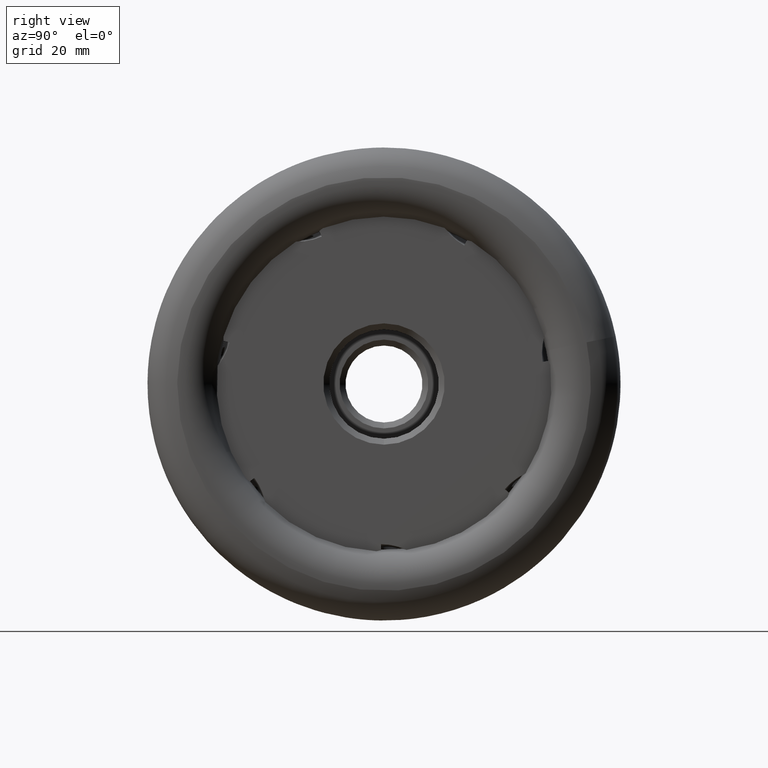
[diagram: clean part render]
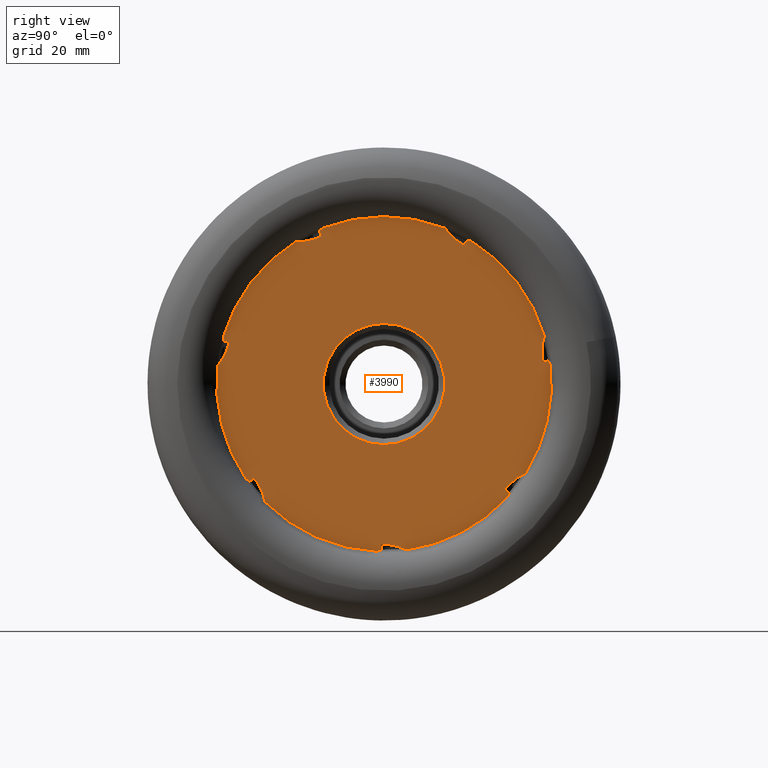
[diagram: same view with one face highlighted and labeled with its STEP entity id]
A machine part, right view. The second image highlights one B-rep face of the part: STEP entity #3990.
In plain terms, the highlighted planar face has unit normal (-1, 0, 0).
Its self-contained STEP definition (entity closure, byte-faithful):
#27 = VECTOR ( 'NONE', #6580, 1000.000000000000100 ) ;
#63 = DIRECTION ( 'NONE',  ( 1.000000000000000000, -0.0000000000000000000, -0.0000000000000000000 ) ) ;
#66 = CARTESIAN_POINT ( 'NONE',  ( -2.684159021143652800, 23.91552685691529900, -15.10342492799503200 ) ) ;
#81 = CARTESIAN_POINT ( 'NONE',  ( -2.684159021131010500, -10.54741568632687900, 24.91918016893186700 ) ) ;
#142 = ORIENTED_EDGE ( 'NONE', *, *, #4219, .T. ) ;
#213 = DIRECTION ( 'NONE',  ( -0.0000000000000000000, -0.7862165355837532600, 0.6179510977210743700 ) ) ;
#219 = CARTESIAN_POINT ( 'NONE',  ( -2.684159021131009600, 0.0000000000000000000, 0.0000000000000000000 ) ) ;
#301 = CARTESIAN_POINT ( 'NONE',  ( -2.684159021131009600, 3.802709604594073100, -28.02865086054721600 ) ) ;
#302 = ORIENTED_EDGE ( 'NONE', *, *, #5466, .F. ) ;
#348 = DIRECTION ( 'NONE',  ( 1.000000000000000000, -0.0000000000000000000, -0.0000000000000000000 ) ) ;
#373 = VERTEX_POINT ( 'NONE', #5206 ) ;
#391 = EDGE_CURVE ( 'NONE', #591, #3428, #402, .T. ) ;
#402 = LINE ( 'NONE', #3657, #4981 ) ;
#412 = CARTESIAN_POINT ( 'NONE',  ( -2.684159021131008700, -20.16977794833785300, -19.54301394921385100 ) ) ;
#447 = CARTESIAN_POINT ( 'NONE',  ( -2.684159021131009100, -0.1283178751443279100, -27.05482430088691700 ) ) ;
#478 = DIRECTION ( 'NONE',  ( 1.000000000000000000, -0.0000000000000000000, -0.0000000000000000000 ) ) ;
#480 = CARTESIAN_POINT ( 'NONE',  ( -2.684159021131009600, 5.192837229400479900, -10.43400671034540700 ) ) ;
#504 = EDGE_CURVE ( 'NONE', #6222, #931, #2110, .T. ) ;
#509 = CARTESIAN_POINT ( 'NONE',  ( -2.684159021131009600, -27.11552903484799200, 8.050711431915770400 ) ) ;
#533 = CARTESIAN_POINT ( 'NONE',  ( -2.684159021131009600, 29.36785909913680100, 0.3268310391987537800 ) ) ;
#547 = LINE ( 'NONE', #6301, #4722 ) ;
#561 = CARTESIAN_POINT ( 'NONE',  ( -2.684159021131009600, 28.10563964344210700, 3.184162312546134000 ) ) ;
#568 = AXIS2_PLACEMENT_3D ( 'NONE', #4446, #1475, #4965 ) ;
#573 = CARTESIAN_POINT ( 'NONE',  ( -2.684159021131010000, -11.23675674035416300, 24.63523487206301600 ) ) ;
#591 = VERTEX_POINT ( 'NONE', #6416 ) ;
#593 = VERTEX_POINT ( 'NONE', #1877 ) ;
#641 = CARTESIAN_POINT ( 'NONE',  ( -2.684159021131009600, 3.802709604594073100, -28.02865086054721600 ) ) ;
#644 = AXIS2_PLACEMENT_3D ( 'NONE', #3030, #63, #3549 ) ;
#657 = LINE ( 'NONE', #480, #27 ) ;
#659 = EDGE_CURVE ( 'NONE', #2014, #3850, #1658, .T. ) ;
#713 = EDGE_LOOP ( 'NONE', ( #1491, #5118, #5832, #5602, #142, #5439, #5041, #6142, #1563, #4626, #4944, #4950, #2447, #2862, #302, #3019, #2249, #6414, #1290, #1322, #4210, #2643, #6293, #2207, #1477, #3649, #3939, #2272 ) ) ;
#727 = DIRECTION ( 'NONE',  ( 0.0000000000000000000, 0.0000000000000000000, -1.000000000000000000 ) ) ;
#739 = DIRECTION ( 'NONE',  ( -0.0000000000000000000, -0.9666746126776137900, -0.2560081897217063000 ) ) ;
#741 = CARTESIAN_POINT ( 'NONE',  ( -2.684159021131009600, -10.34993942729597500, 26.32384134678994400 ) ) ;
#748 = EDGE_CURVE ( 'NONE', #897, #897, #3378, .T. ) ;
#787 = AXIS2_PLACEMENT_3D ( 'NONE', #2771, #6366, #3286 ) ;
#831 = EDGE_CURVE ( 'NONE', #5919, #6101, #657, .T. ) ;
#842 = FACE_BOUND ( 'NONE', #2644, .T. ) ;
#845 = CARTESIAN_POINT ( 'NONE',  ( -2.684159021131009600, 0.0000000000000000000, 0.0000000000000000000 ) ) ;
#862 = EDGE_CURVE ( 'NONE', #5205, #3491, #1307, .T. ) ;
#887 = EDGE_CURVE ( 'NONE', #4970, #3503, #1450, .T. ) ;
#895 = CARTESIAN_POINT ( 'NONE',  ( -2.684159021131009600, -26.32779570456230900, 6.321656720578070900 ) ) ;
#897 = VERTEX_POINT ( 'NONE', #2430 ) ;
#918 = VERTEX_POINT ( 'NONE', #5281 ) ;
#931 = VERTEX_POINT ( 'NONE', #641 ) ;
#975 = VECTOR ( 'NONE', #2162, 1000.000000000000100 ) ;
#1002 = AXIS2_PLACEMENT_3D ( 'NONE', #4198, #1226, #4716 ) ;
#1040 = CARTESIAN_POINT ( 'NONE',  ( -2.684159021131008700, 12.31643690473492600, 24.22272606347239700 ) ) ;
#1072 = EDGE_CURVE ( 'NONE', #6101, #593, #6031, .T. ) ;
#1098 = CARTESIAN_POINT ( 'NONE',  ( -2.684159021131009600, -12.29807414084759800, 24.31983714480531900 ) ) ;
#1119 = CARTESIAN_POINT ( 'NONE',  ( -2.684159021131009600, -0.5000000000000004400, 0.0000000000000000000 ) ) ;
#1124 = PLANE ( 'NONE',  #1222 ) ;
#1141 = DIRECTION ( 'NONE',  ( 0.0000000000000000000, -0.4848096202463438900, -0.8746197071393919700 ) ) ;
#1168 = CARTESIAN_POINT ( 'NONE',  ( -2.684159021131009600, -26.98666154832039200, -0.8089395054585635200 ) ) ;
#1201 = VERTEX_POINT ( 'NONE', #4585 ) ;
#1222 = AXIS2_PLACEMENT_3D ( 'NONE', #1648, #2591, #6179 ) ;
#1226 = DIRECTION ( 'NONE',  ( 1.000000000000000000, -0.0000000000000000000, -0.0000000000000000000 ) ) ;
#1290 = ORIENTED_EDGE ( 'NONE', *, *, #887, .F. ) ;
#1307 = LINE ( 'NONE', #3633, #4190 ) ;
#1322 = ORIENTED_EDGE ( 'NONE', *, *, #5265, .T. ) ;
#1329 = EDGE_CURVE ( 'NONE', #918, #2551, #1990, .T. ) ;
#1350 = EDGE_CURVE ( 'NONE', #3851, #5300, #1916, .T. ) ;
#1370 = DIRECTION ( 'NONE',  ( 0.0000000000000000000, 0.0000000000000000000, -1.000000000000000000 ) ) ;
#1409 = CARTESIAN_POINT ( 'NONE',  ( -2.684159021131009600, 29.61009327628927000, -0.4614403324711946500 ) ) ;
#1410 = CARTESIAN_POINT ( 'NONE',  ( -2.684159021131010500, -26.13021944649869600, 7.030302243124623400 ) ) ;
#1412 = CARTESIAN_POINT ( 'NONE',  ( -2.684159021131009600, -21.90785091635478200, -15.88268195798917800 ) ) ;
#1450 = LINE ( 'NONE', #1168, #975 ) ;
#1475 = DIRECTION ( 'NONE',  ( 1.000000000000000000, -0.0000000000000000000, -0.0000000000000000000 ) ) ;
#1477 = ORIENTED_EDGE ( 'NONE', *, *, #6232, .T. ) ;
#1480 = CIRCLE ( 'NONE', #787, 28.28543564097367000 ) ;
#1491 = ORIENTED_EDGE ( 'NONE', *, *, #504, .T. ) ;
#1558 = CARTESIAN_POINT ( 'NONE',  ( -2.684159021131010000, 11.46950917278265400, 24.95015907744079100 ) ) ;
#1563 = ORIENTED_EDGE ( 'NONE', *, *, #4439, .T. ) ;
#1581 = CARTESIAN_POINT ( 'NONE',  ( -2.684159021131009100, 20.89819808163962400, -17.21676075911358000 ) ) ;
#1617 = CARTESIAN_POINT ( 'NONE',  ( -2.684159021131009600, -13.38849624858508700, 24.12344693652863000 ) ) ;
#1622 = DIRECTION ( 'NONE',  ( 0.0000000000000000000, -0.9876883405951391000, -0.1564344650402213800 ) ) ;
#1631 = CARTESIAN_POINT ( 'NONE',  ( -2.684159021131009600, 26.79995175135617600, 3.738462795968859900 ) ) ;
#1648 = CARTESIAN_POINT ( 'NONE',  ( -2.684159021131009600, 28.62800000000000000, 0.0000000000000000000 ) ) ;
#1658 = B_SPLINE_CURVE_WITH_KNOTS ( 'NONE', 3,
 ( #1410, #4383, #895, #1911, #5427, #2385, #5946, #2870, #6475, #3384 ),
 .UNSPECIFIED., .F., .F.,
 ( 4, 2, 2, 2, 4 ),
 ( 0.05848623545154584700, 0.05958972713425587200, 0.06069321881696589800, 0.06179671049967593000, 0.06290020218238595600 ),
 .UNSPECIFIED. ) ;
#1773 = CARTESIAN_POINT ( 'NONE',  ( -2.684159021131009600, 26.79995175135617600, 3.738462795968859900 ) ) ;
#1794 = EDGE_CURVE ( 'NONE', #3850, #3428, #2827, .T. ) ;
#1817 = AXIS2_PLACEMENT_3D ( 'NONE', #845, #4342, #1370 ) ;
#1818 = CARTESIAN_POINT ( 'NONE',  ( -2.684159021131009600, 20.84207645590183200, -19.12259706226631900 ) ) ;
#1864 = CIRCLE ( 'NONE', #1817, 28.28543564097367000 ) ;
#1877 = CARTESIAN_POINT ( 'NONE',  ( -2.684159021130101900, -14.87422744698476700, 24.05874533833895500 ) ) ;
#1911 = CARTESIAN_POINT ( 'NONE',  ( -2.684159021131009600, -26.58421430427412000, 5.629684166448512900 ) ) ;
#1916 = CIRCLE ( 'NONE', #3448, 28.28543564097367000 ) ;
#1927 = CARTESIAN_POINT ( 'NONE',  ( -2.684159021131009600, -21.45790787109275400, -16.47977654622829700 ) ) ;
#1932 = VERTEX_POINT ( 'NONE', #1631 ) ;
#1976 = CARTESIAN_POINT ( 'NONE',  ( -2.684159021131009600, -0.4999999999999995600, -27.05482430088693100 ) ) ;
#1990 = CIRCLE ( 'NONE', #1002, 28.28543564097367000 ) ;
#2014 = VERTEX_POINT ( 'NONE', #2703 ) ;
#2038 = LINE ( 'NONE', #2558, #3218 ) ;
#2046 = CARTESIAN_POINT ( 'NONE',  ( -2.684159021131010000, 10.71061318629568700, 25.76549808332962100 ) ) ;
#2060 = CARTESIAN_POINT ( 'NONE',  ( -2.684159021131009600, 21.71843489776633600, -16.46407862961158100 ) ) ;
#2066 = CARTESIAN_POINT ( 'NONE',  ( -2.684159021131009600, -1.251730711570824300, -28.25772530876068700 ) ) ;
#2102 = CARTESIAN_POINT ( 'NONE',  ( -2.684159021131009600, -14.50479487461187800, 24.04904628664527200 ) ) ;
#2110 = B_SPLINE_CURVE_WITH_KNOTS ( 'NONE', 3,
 ( #1976, #447, #4971, #5494, #2448, #6008, #2942, #6549, #2241, #301 ),
 .UNSPECIFIED., .F., .F.,
 ( 4, 2, 2, 2, 4 ),
 ( 0.06175891708352521800, 0.06286392234330902300, 0.06396892760309283400, 0.06507393286287664600, 0.06617893812266045800 ),
 .UNSPECIFIED. ) ;
#2117 = AXIS2_PLACEMENT_3D ( 'NONE', #3341, #348, #3847 ) ;
#2162 = DIRECTION ( 'NONE',  ( -0.0000000000000000000, -0.01454389765157911900, 0.9998942319271074700 ) ) ;
#2207 = ORIENTED_EDGE ( 'NONE', *, *, #3522, .T. ) ;
#2241 = CARTESIAN_POINT ( 'NONE',  ( -2.684159021131009600, 3.466883855799270700, -27.86844218429474300 ) ) ;
#2248 = CARTESIAN_POINT ( 'NONE',  ( -2.684159021131009100, 26.68366902042690100, 4.472643064504222100 ) ) ;
#2249 = ORIENTED_EDGE ( 'NONE', *, *, #1072, .T. ) ;
#2272 = ORIENTED_EDGE ( 'NONE', *, *, #4750, .T. ) ;
#2333 = VECTOR ( 'NONE', #1622, 1000.000000000000100 ) ;
#2367 = EDGE_CURVE ( 'NONE', #5205, #4424, #4993, .T. ) ;
#2385 = CARTESIAN_POINT ( 'NONE',  ( -2.684159021131010000, -27.06764747172496800, 4.622633448230225800 ) ) ;
#2430 = CARTESIAN_POINT ( 'NONE',  ( -2.684159021131009100, 0.0000000000000000000, -10.25000000000000200 ) ) ;
#2447 = ORIENTED_EDGE ( 'NONE', *, *, #2734, .T. ) ;
#2448 = CARTESIAN_POINT ( 'NONE',  ( -2.684159021131009600, 1.349177035125842300, -27.22051807947197200 ) ) ;
#2482 = VERTEX_POINT ( 'NONE', #1412 ) ;
#2486 = LINE ( 'NONE', #533, #3435 ) ;
#2496 = CARTESIAN_POINT ( 'NONE',  ( -2.684159021131009600, 13.55374894871425100, 23.42027769662626800 ) ) ;
#2513 = CARTESIAN_POINT ( 'NONE',  ( -2.684159021130140500, 10.26263481900635500, 26.35800060648377400 ) ) ;
#2527 = CIRCLE ( 'NONE', #2117, 28.28543564097367000 ) ;
#2534 = CARTESIAN_POINT ( 'NONE',  ( -2.684159021131010000, 22.62054347396809800, -15.80524350186822400 ) ) ;
#2551 = VERTEX_POINT ( 'NONE', #2066 ) ;
#2558 = CARTESIAN_POINT ( 'NONE',  ( -2.684159021131009600, 27.07347279198246100, -6.234868086579346000 ) ) ;
#2591 = DIRECTION ( 'NONE',  ( -1.000000000000000000, 0.0000000000000000000, 0.0000000000000000000 ) ) ;
#2598 = LINE ( 'NONE', #4518, #2614 ) ;
#2604 = EDGE_CURVE ( 'NONE', #2803, #3210, #4690, .T. ) ;
#2614 = VECTOR ( 'NONE', #5541, 999.9999999999998900 ) ;
#2643 = ORIENTED_EDGE ( 'NONE', *, *, #1794, .T. ) ;
#2644 = EDGE_LOOP ( 'NONE', ( #4022 ) ) ;
#2703 = CARTESIAN_POINT ( 'NONE',  ( -2.684159021131010500, -26.13021944649869600, 7.030302243124623400 ) ) ;
#2724 = CARTESIAN_POINT ( 'NONE',  ( -2.684159021131008700, 26.74747197814600600, 6.697707476511640200 ) ) ;
#2734 = EDGE_CURVE ( 'NONE', #4424, #4307, #5322, .T. ) ;
#2771 = CARTESIAN_POINT ( 'NONE',  ( -2.684159021131009600, 0.0000000000000000000, 0.0000000000000000000 ) ) ;
#2803 = VERTEX_POINT ( 'NONE', #4768 ) ;
#2827 = CIRCLE ( 'NONE', #5486, 28.28543564097367000 ) ;
#2862 = ORIENTED_EDGE ( 'NONE', *, *, #3616, .T. ) ;
#2870 = CARTESIAN_POINT ( 'NONE',  ( -2.684159021131009100, -27.65832663044924500, 3.678988848654935100 ) ) ;
#2886 = CARTESIAN_POINT ( 'NONE',  ( -2.684159021131008700, -20.62692587234216300, -18.12611541504789500 ) ) ;
#2904 = CIRCLE ( 'NONE', #644, 28.28543564097367000 ) ;
#2942 = CARTESIAN_POINT ( 'NONE',  ( -2.684159021131009600, 2.422218313061728500, -27.48454002243340400 ) ) ;
#2956 = VECTOR ( 'NONE', #3098, 1000.000000000000000 ) ;
#2989 = LINE ( 'NONE', #4614, #2333 ) ;
#3019 = ORIENTED_EDGE ( 'NONE', *, *, #831, .T. ) ;
#3030 = CARTESIAN_POINT ( 'NONE',  ( -2.684159021131009600, 0.0000000000000000000, 0.0000000000000000000 ) ) ;
#3032 = CARTESIAN_POINT ( 'NONE',  ( -2.684159021131009100, 23.58083735136797500, -15.25592425954059000 ) ) ;
#3048 = CARTESIAN_POINT ( 'NONE',  ( -2.684159021131009100, -10.88843353553133400, 24.76734924026384000 ) ) ;
#3061 = DIRECTION ( 'NONE',  ( 0.0000000000000000000, 0.9702957262759955800, -0.2419218955996717000 ) ) ;
#3078 = VECTOR ( 'NONE', #6474, 1000.000000000000100 ) ;
#3090 = CARTESIAN_POINT ( 'NONE',  ( -2.684159021131009600, 7.166045505335793200, 11.89655563826002700 ) ) ;
#3098 = DIRECTION ( 'NONE',  ( 0.0000000000000000000, 0.0000000000000000000, 1.000000000000000000 ) ) ;
#3175 = VECTOR ( 'NONE', #1141, 1000.000000000000000 ) ;
#3210 = VERTEX_POINT ( 'NONE', #1818 ) ;
#3218 = VECTOR ( 'NONE', #3061, 999.9999999999998900 ) ;
#3223 = EDGE_CURVE ( 'NONE', #593, #3503, #1480, .T. ) ;
#3236 = CARTESIAN_POINT ( 'NONE',  ( -2.684159021145270200, 27.08869681487726000, 8.140538942296515800 ) ) ;
#3286 = DIRECTION ( 'NONE',  ( 0.0000000000000000000, 0.0000000000000000000, -1.000000000000000000 ) ) ;
#3341 = CARTESIAN_POINT ( 'NONE',  ( -2.684159021131009600, 0.0000000000000000000, 0.0000000000000000000 ) ) ;
#3343 = EDGE_CURVE ( 'NONE', #1201, #3491, #1864, .T. ) ;
#3378 = CIRCLE ( 'NONE', #568, 10.25000000000000200 ) ;
#3384 = CARTESIAN_POINT ( 'NONE',  ( -2.684159021145207100, -28.11603885923061300, 3.090991469678084200 ) ) ;
#3399 = EDGE_CURVE ( 'NONE', #931, #3210, #2527, .T. ) ;
#3403 = CARTESIAN_POINT ( 'NONE',  ( -2.684159021131009600, -20.26390668470745400, -19.18305768879415000 ) ) ;
#3428 = VERTEX_POINT ( 'NONE', #5396 ) ;
#3435 = VECTOR ( 'NONE', #5056, 1000.000000000000100 ) ;
#3448 = AXIS2_PLACEMENT_3D ( 'NONE', #219, #3706, #727 ) ;
#3471 = CARTESIAN_POINT ( 'NONE',  ( -2.684159021131009600, 0.0000000000000000000, 0.0000000000000000000 ) ) ;
#3491 = VERTEX_POINT ( 'NONE', #4992 ) ;
#3503 = VERTEX_POINT ( 'NONE', #509 ) ;
#3522 = EDGE_CURVE ( 'NONE', #591, #2482, #2598, .T. ) ;
#3549 = DIRECTION ( 'NONE',  ( 0.0000000000000000000, 0.0000000000000000000, -1.000000000000000000 ) ) ;
#3576 = EDGE_CURVE ( 'NONE', #6543, #1932, #2989, .T. ) ;
#3616 = EDGE_CURVE ( 'NONE', #4307, #6329, #2904, .T. ) ;
#3633 = CARTESIAN_POINT ( 'NONE',  ( -2.684159021131009600, 33.52018936335547000, 19.38115061264750200 ) ) ;
#3649 = ORIENTED_EDGE ( 'NONE', *, *, #1329, .T. ) ;
#3657 = CARTESIAN_POINT ( 'NONE',  ( -2.684159021131009600, 1.014066457870131700, -35.13308940367456800 ) ) ;
#3706 = DIRECTION ( 'NONE',  ( 1.000000000000000000, -0.0000000000000000000, -0.0000000000000000000 ) ) ;
#3716 = CARTESIAN_POINT ( 'NONE',  ( -2.684159021131009600, 33.66280295791815300, -19.01117383996318800 ) ) ;
#3717 = B_SPLINE_CURVE_WITH_KNOTS ( 'NONE', 3,
 ( #1773, #2248, #5794, #2724, #6319, #3236 ),
 .UNSPECIFIED., .F., .F.,
 ( 4, 2, 4 ),
 ( 0.06146572039801862600, 0.06367624321757940600, 0.06588676603714019300 ),
 .UNSPECIFIED. ) ;
#3738 = CARTESIAN_POINT ( 'NONE',  ( -2.684159021131009600, -0.5000000000000000000, -28.05864154665133000 ) ) ;
#3840 = VECTOR ( 'NONE', #5392, 1000.000000000000000 ) ;
#3847 = DIRECTION ( 'NONE',  ( 0.0000000000000000000, 0.0000000000000000000, -1.000000000000000000 ) ) ;
#3850 = VERTEX_POINT ( 'NONE', #4894 ) ;
#3851 = VERTEX_POINT ( 'NONE', #5418 ) ;
#3910 = CARTESIAN_POINT ( 'NONE',  ( -2.684159021130939800, -20.09614810721918600, -19.90504209119829700 ) ) ;
#3939 = ORIENTED_EDGE ( 'NONE', *, *, #4428, .F. ) ;
#3972 = DIRECTION ( 'NONE',  ( 0.0000000000000000000, 0.0000000000000000000, -1.000000000000000000 ) ) ;
#3990 = ADVANCED_FACE ( 'NONE', ( #842, #4583 ), #1124, .F. ) ;
#4015 = CARTESIAN_POINT ( 'NONE',  ( -2.684159021131010000, 12.92035981708124500, 23.79449740190519000 ) ) ;
#4022 = ORIENTED_EDGE ( 'NONE', *, *, #748, .F. ) ;
#4032 = CARTESIAN_POINT ( 'NONE',  ( -2.684159021131009600, 20.40380401041122500, -17.77352806441615100 ) ) ;
#4034 = CARTESIAN_POINT ( 'NONE',  ( -2.684159021131010500, 14.04040920643001700, 24.29823604213818900 ) ) ;
#4071 = CARTESIAN_POINT ( 'NONE',  ( -2.684159021131008700, -11.94105887608573500, 24.41171010131293800 ) ) ;
#4190 = VECTOR ( 'NONE', #4659, 1000.000000000000100 ) ;
#4198 = CARTESIAN_POINT ( 'NONE',  ( -2.684159021131009600, 0.0000000000000000000, 0.0000000000000000000 ) ) ;
#4210 = ORIENTED_EDGE ( 'NONE', *, *, #659, .T. ) ;
#4219 = EDGE_CURVE ( 'NONE', #373, #3851, #5403, .T. ) ;
#4307 = VERTEX_POINT ( 'NONE', #5650 ) ;
#4342 = DIRECTION ( 'NONE',  ( 1.000000000000000000, -0.0000000000000000000, -0.0000000000000000000 ) ) ;
#4383 = CARTESIAN_POINT ( 'NONE',  ( -2.684159021131009600, -26.21925128601290200, 6.673215038723531800 ) ) ;
#4424 = VERTEX_POINT ( 'NONE', #6277 ) ;
#4428 = EDGE_CURVE ( 'NONE', #4478, #2551, #6227, .T. ) ;
#4439 = EDGE_CURVE ( 'NONE', #1932, #1201, #3717, .T. ) ;
#4446 = CARTESIAN_POINT ( 'NONE',  ( -2.684159021131009100, 0.0000000000000000000, 0.0000000000000000000 ) ) ;
#4478 = VERTEX_POINT ( 'NONE', #3738 ) ;
#4518 = CARTESIAN_POINT ( 'NONE',  ( -2.684159021131009600, 17.95856559958856000, 14.15881767068472800 ) ) ;
#4529 = CARTESIAN_POINT ( 'NONE',  ( -2.684159021131009600, 12.02357223399350900, 24.45591418944673000 ) ) ;
#4546 = CARTESIAN_POINT ( 'NONE',  ( -2.684159021131009100, 20.64189359023446400, -17.48978395230260200 ) ) ;
#4583 = FACE_OUTER_BOUND ( 'NONE', #713, .T. ) ;
#4585 = CARTESIAN_POINT ( 'NONE',  ( -2.684159021145270200, 27.08869681487726000, 8.140538942296515800 ) ) ;
#4587 = CARTESIAN_POINT ( 'NONE',  ( -2.684159021131010000, -13.02179326271868800, 24.17570734364474200 ) ) ;
#4614 = CARTESIAN_POINT ( 'NONE',  ( -2.684159021131009600, 28.00564020676902300, 3.929425087185164600 ) ) ;
#4626 = ORIENTED_EDGE ( 'NONE', *, *, #3343, .T. ) ;
#4659 = DIRECTION ( 'NONE',  ( -0.0000000000000000000, 0.9695878998781142200, -0.2447433439543308900 ) ) ;
#4690 = LINE ( 'NONE', #1409, #3078 ) ;
#4716 = DIRECTION ( 'NONE',  ( 0.0000000000000000000, 0.0000000000000000000, -1.000000000000000000 ) ) ;
#4722 = VECTOR ( 'NONE', #5648, 1000.000000000000000 ) ;
#4750 = EDGE_CURVE ( 'NONE', #4478, #6222, #5296, .T. ) ;
#4768 = CARTESIAN_POINT ( 'NONE',  ( -2.684159021131011300, 21.17277263343604300, -18.41876935238318700 ) ) ;
#4894 = CARTESIAN_POINT ( 'NONE',  ( -2.684159021145207100, -28.11603885923061300, 3.090991469678084200 ) ) ;
#4898 = EDGE_CURVE ( 'NONE', #6543, #5300, #2486, .T. ) ;
#4918 = CARTESIAN_POINT ( 'NONE',  ( -2.684159021131009600, 27.79141034108599600, 3.895494409808160100 ) ) ;
#4922 = CARTESIAN_POINT ( 'NONE',  ( -2.684159021131009600, -0.4999999999999995600, -27.05482430088693100 ) ) ;
#4944 = ORIENTED_EDGE ( 'NONE', *, *, #862, .F. ) ;
#4950 = ORIENTED_EDGE ( 'NONE', *, *, #2367, .T. ) ;
#4965 = DIRECTION ( 'NONE',  ( 0.0000000000000000000, 0.0000000000000000000, -1.000000000000000000 ) ) ;
#4970 = VERTEX_POINT ( 'NONE', #6183 ) ;
#4971 = CARTESIAN_POINT ( 'NONE',  ( -2.684159021131010000, 0.2457130556777635500, -27.07575391669044200 ) ) ;
#4981 = VECTOR ( 'NONE', #213, 1000.000000000000000 ) ;
#4992 = CARTESIAN_POINT ( 'NONE',  ( -2.684159021131009600, 14.79440542433721500, 24.10791234304632600 ) ) ;
#4993 = LINE ( 'NONE', #3090, #3175 ) ;
#5025 = CARTESIAN_POINT ( 'NONE',  ( -2.684159021131009100, 13.23221059463999400, 23.59850931667885400 ) ) ;
#5041 = ORIENTED_EDGE ( 'NONE', *, *, #4898, .F. ) ;
#5046 = CARTESIAN_POINT ( 'NONE',  ( -2.684159021131009600, 11.20689717270298900, 25.21205516983373900 ) ) ;
#5056 = DIRECTION ( 'NONE',  ( -0.0000000000000000000, 0.4040775299871834400, -0.9147247398859706900 ) ) ;
#5063 = CARTESIAN_POINT ( 'NONE',  ( -2.684159021131009600, 21.43595742828651800, -16.70461059135878300 ) ) ;
#5106 = CARTESIAN_POINT ( 'NONE',  ( -2.684159021131010000, -14.13191436984855900, 24.05986524136469000 ) ) ;
#5118 = ORIENTED_EDGE ( 'NONE', *, *, #3399, .T. ) ;
#5205 = VERTEX_POINT ( 'NONE', #4034 ) ;
#5206 = CARTESIAN_POINT ( 'NONE',  ( -2.684159021131009600, 20.40380401041122500, -17.77352806441615100 ) ) ;
#5265 = EDGE_CURVE ( 'NONE', #4970, #2014, #2038, .T. ) ;
#5281 = CARTESIAN_POINT ( 'NONE',  ( -2.684159021130939800, -20.09614810721918600, -19.90504209119829700 ) ) ;
#5296 = LINE ( 'NONE', #1119, #2956 ) ;
#5300 = VERTEX_POINT ( 'NONE', #561 ) ;
#5318 = CARTESIAN_POINT ( 'NONE',  ( -2.684159021131010500, -10.54741568632687900, 24.91918016893186700 ) ) ;
#5322 = B_SPLINE_CURVE_WITH_KNOTS ( 'NONE', 3,
 ( #2496, #5025, #4015, #1040, #4529, #1558, #5046, #2046, #5574, #2513 ),
 .UNSPECIFIED., .F., .F.,
 ( 4, 2, 2, 2, 4 ),
 ( 0.05887027009091715800, 0.05997313658852337900, 0.06107600308612959300, 0.06217886958373581400, 0.06328173608134203500 ),
 .UNSPECIFIED. ) ;
#5392 = DIRECTION ( 'NONE',  ( 0.0000000000000000000, -0.7660444431189701300, 0.6427876096865488000 ) ) ;
#5396 = CARTESIAN_POINT ( 'NONE',  ( -2.684159021131009600, -23.32093321190257400, -16.00624701563871700 ) ) ;
#5403 = B_SPLINE_CURVE_WITH_KNOTS ( 'NONE', 3,
 ( #4032, #4546, #1581, #5063, #2060, #5596, #2534, #6111, #3032, #66 ),
 .UNSPECIFIED., .F., .F.,
 ( 4, 2, 2, 2, 4 ),
 ( 0.05999829830763029500, 0.06110151746579062200, 0.06220473662395095700, 0.06330795578211129100, 0.06441117494027161200 ),
 .UNSPECIFIED. ) ;
#5418 = CARTESIAN_POINT ( 'NONE',  ( -2.684159021143652800, 23.91552685691529900, -15.10342492799503200 ) ) ;
#5427 = CARTESIAN_POINT ( 'NONE',  ( -2.684159021131009600, -26.73281402777516300, 5.287866747047894800 ) ) ;
#5439 = ORIENTED_EDGE ( 'NONE', *, *, #1350, .T. ) ;
#5441 = CARTESIAN_POINT ( 'NONE',  ( -2.684159021131009600, -21.90785091635478200, -15.88268195798917800 ) ) ;
#5451 = CARTESIAN_POINT ( 'NONE',  ( -2.684159021131011300, -10.95570494313068400, 25.83621285410325200 ) ) ;
#5466 = EDGE_CURVE ( 'NONE', #5919, #6329, #547, .T. ) ;
#5486 = AXIS2_PLACEMENT_3D ( 'NONE', #3471, #478, #3972 ) ;
#5494 = CARTESIAN_POINT ( 'NONE',  ( -2.684159021131008700, 0.9847984677615790900, -27.15876765337234000 ) ) ;
#5541 = DIRECTION ( 'NONE',  ( 0.0000000000000000000, 0.7986355100472941600, 0.6018150231520467100 ) ) ;
#5574 = CARTESIAN_POINT ( 'NONE',  ( -2.684159021131009600, 10.47707759192003800, 26.05731971327009300 ) ) ;
#5596 = CARTESIAN_POINT ( 'NONE',  ( -2.684159021131010900, 22.31070602723250600, -16.01423880157298600 ) ) ;
#5602 = ORIENTED_EDGE ( 'NONE', *, *, #5823, .T. ) ;
#5636 = CARTESIAN_POINT ( 'NONE',  ( -2.684159021130101900, -14.87422744698476700, 24.05874533833895500 ) ) ;
#5648 = DIRECTION ( 'NONE',  ( -0.0000000000000000000, 0.7789732897427390500, 0.6270571057466574100 ) ) ;
#5650 = CARTESIAN_POINT ( 'NONE',  ( -2.684159021130140500, 10.26263481900635500, 26.35800060648377400 ) ) ;
#5794 = CARTESIAN_POINT ( 'NONE',  ( -2.684159021131010000, 26.65001359990510100, 5.224914520224993800 ) ) ;
#5823 = EDGE_CURVE ( 'NONE', #2803, #373, #5926, .T. ) ;
#5832 = ORIENTED_EDGE ( 'NONE', *, *, #2604, .F. ) ;
#5919 = VERTEX_POINT ( 'NONE', #5451 ) ;
#5926 = LINE ( 'NONE', #6423, #3840 ) ;
#5946 = CARTESIAN_POINT ( 'NONE',  ( -2.684159021131009100, -27.25281682670889100, 4.300898836841571300 ) ) ;
#5961 = CARTESIAN_POINT ( 'NONE',  ( -2.684159021131010000, -21.08207677831679000, -17.11647282300826600 ) ) ;
#6008 = CARTESIAN_POINT ( 'NONE',  ( -2.684159021131010000, 2.067887242682154200, -27.38340314716263900 ) ) ;
#6031 = B_SPLINE_CURVE_WITH_KNOTS ( 'NONE', 3,
 ( #81, #3048, #573, #4071, #1098, #4587, #1617, #5106, #2102, #5636 ),
 .UNSPECIFIED., .F., .F.,
 ( 4, 2, 2, 2, 4 ),
 ( 0.05030986596264231500, 0.05141569320966836400, 0.05252152045669440700, 0.05362734770372045600, 0.05473317495074650500 ),
 .UNSPECIFIED. ) ;
#6101 = VERTEX_POINT ( 'NONE', #5318 ) ;
#6111 = CARTESIAN_POINT ( 'NONE',  ( -2.684159021131009100, 23.25485800077429500, -15.42669392544574700 ) ) ;
#6142 = ORIENTED_EDGE ( 'NONE', *, *, #3576, .T. ) ;
#6179 = DIRECTION ( 'NONE',  ( 0.0000000000000000000, 0.0000000000000000000, 1.000000000000000000 ) ) ;
#6183 = CARTESIAN_POINT ( 'NONE',  ( -2.684159021131009600, -27.10421903002604400, 7.273147614055592000 ) ) ;
#6222 = VERTEX_POINT ( 'NONE', #4922 ) ;
#6227 = LINE ( 'NONE', #3716, #6235 ) ;
#6232 = EDGE_CURVE ( 'NONE', #2482, #918, #6485, .T. ) ;
#6235 = VECTOR ( 'NONE', #739, 1000.000000000000100 ) ;
#6277 = CARTESIAN_POINT ( 'NONE',  ( -2.684159021131009600, 13.55374894871425100, 23.42027769662626800 ) ) ;
#6293 = ORIENTED_EDGE ( 'NONE', *, *, #391, .F. ) ;
#6301 = CARTESIAN_POINT ( 'NONE',  ( -2.684159021131009600, 0.4436873576123268000, 35.01248377057503800 ) ) ;
#6319 = CARTESIAN_POINT ( 'NONE',  ( -2.684159021131009600, 26.87646602955320000, 7.424238549365314900 ) ) ;
#6329 = VERTEX_POINT ( 'NONE', #741 ) ;
#6366 = DIRECTION ( 'NONE',  ( 1.000000000000000000, -0.0000000000000000000, -0.0000000000000000000 ) ) ;
#6414 = ORIENTED_EDGE ( 'NONE', *, *, #3223, .T. ) ;
#6416 = CARTESIAN_POINT ( 'NONE',  ( -2.684159021131011300, -22.70953501442010800, -16.48679425698929500 ) ) ;
#6423 = CARTESIAN_POINT ( 'NONE',  ( -2.684159021131009600, 16.47820621028081700, -14.47956039817629700 ) ) ;
#6474 = DIRECTION ( 'NONE',  ( -0.0000000000000000000, -0.4252528124984535900, -0.9050746076772648900 ) ) ;
#6475 = CARTESIAN_POINT ( 'NONE',  ( -2.684159021131008700, -27.87992593892475000, 3.377379696468288300 ) ) ;
#6485 = B_SPLINE_CURVE_WITH_KNOTS ( 'NONE', 3,
 ( #5441, #1927, #5961, #2886, #6492, #3403, #412, #3910 ),
 .UNSPECIFIED., .F., .F.,
 ( 4, 2, 2, 4 ),
 ( 0.05038453340668343900, 0.05259659731260697700, 0.05370262926556874900, 0.05480866121853052200 ),
 .UNSPECIFIED. ) ;
#6492 = CARTESIAN_POINT ( 'NONE',  ( -2.684159021131009100, -20.49337181087509000, -18.47198763590491300 ) ) ;
#6543 = VERTEX_POINT ( 'NONE', #4918 ) ;
#6549 = CARTESIAN_POINT ( 'NONE',  ( -2.684159021131010000, 3.120738240667908500, -27.72657151198599800 ) ) ;
#6580 = DIRECTION ( 'NONE',  ( 0.0000000000000000000, 0.4067366430757947700, -0.9135454576426033100 ) ) ;